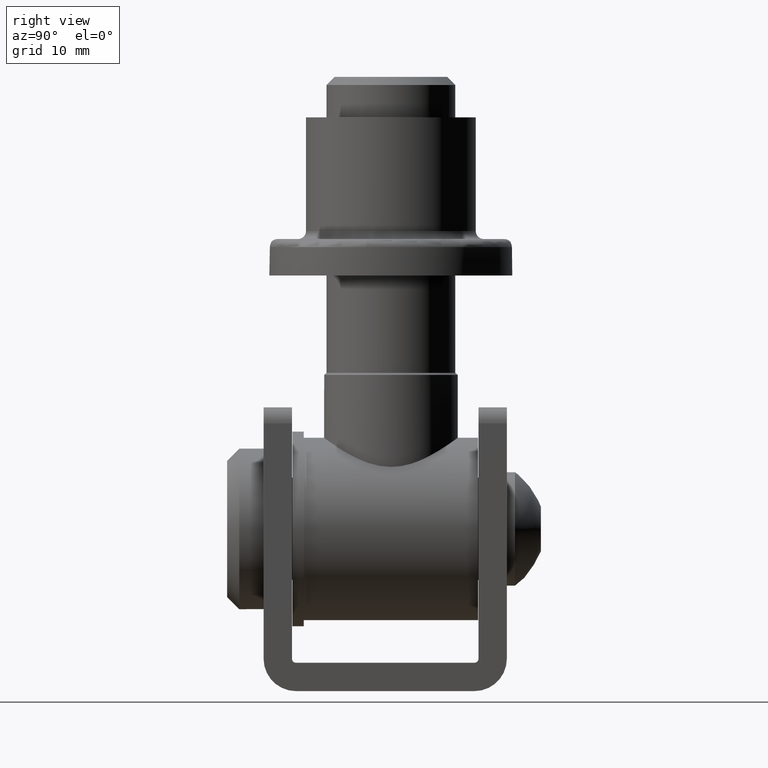
[diagram: clean part render]
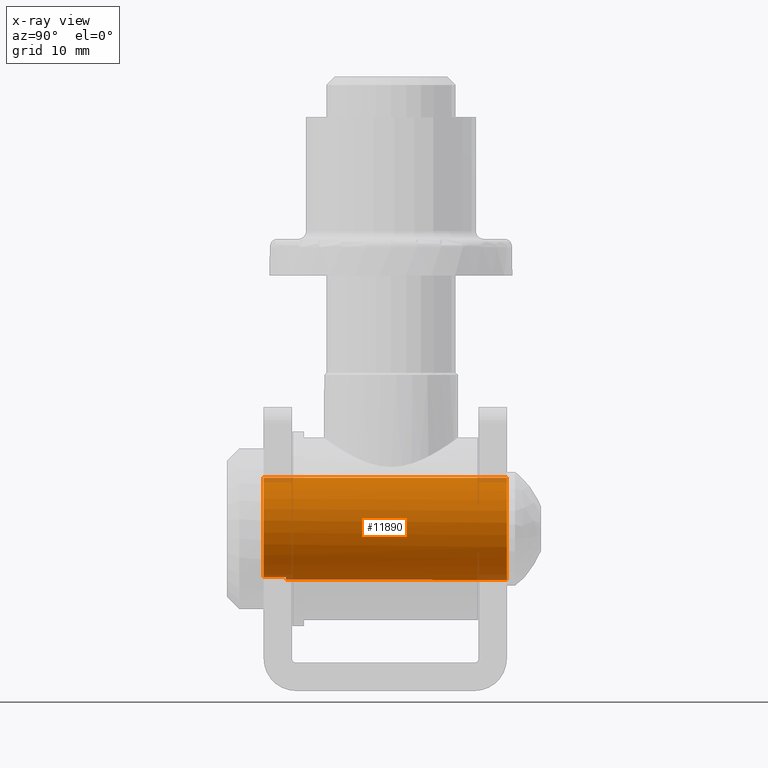
[diagram: x-ray — body ghosted, one internal face saturated and labeled with its STEP entity id]
A machine part, right view, then the same camera in x-ray: the body is ghosted and one INTERNAL B-rep face — a face not visible from any outside direction — is saturated and labeled: STEP entity #11890.
In plain terms, the highlighted cylindrical surface (bore or boss wall) has radius 6.3 mm, axis along (0, -1, 0).
Its self-contained STEP definition (entity closure, byte-faithful):
#12 = CARTESIAN_POINT ( 'NONE',  ( 1.999999999999998668, 3.000000000000000000, 5.974110812497539058 ) ) ;
#54 = DIRECTION ( 'NONE',  ( 0.000000000000000000, 0.000000000000000000, -1.000000000000000000 ) ) ;
#299 = VECTOR ( 'NONE', #3272, 1000.000000000000000 ) ;
#388 = EDGE_CURVE ( 'NONE', #2749, #2749, #12528, .T. ) ;
#1051 = ORIENTED_EDGE ( 'NONE', *, *, #7073, .F. ) ;
#1106 = CIRCLE ( 'NONE', #13407, 6.299999999999998046 ) ;
#1487 = CIRCLE ( 'NONE', #4587, 6.299999999999999822 ) ;
#1902 = ORIENTED_EDGE ( 'NONE', *, *, #9110, .T. ) ;
#2131 = CARTESIAN_POINT ( 'NONE',  ( 0.000000000000000000, 0.000000000000000000, 0.000000000000000000 ) ) ;
#2468 = DIRECTION ( 'NONE',  ( -0.000000000000000000, -1.000000000000000000, -0.000000000000000000 ) ) ;
#2478 = AXIS2_PLACEMENT_3D ( 'NONE', #11223, #2468, #6849 ) ;
#2507 = DIRECTION ( 'NONE',  ( 1.776356839400250465E-15, 0.000000000000000000, -1.000000000000000000 ) ) ;
#2648 = CARTESIAN_POINT ( 'NONE',  ( 0.000000000000000000, 2.750000000000001776, 0.000000000000000000 ) ) ;
#2749 = VERTEX_POINT ( 'NONE', #5553 ) ;
#3272 = DIRECTION ( 'NONE',  ( -0.000000000000000000, -1.000000000000000000, -0.000000000000000000 ) ) ;
#3292 = ORIENTED_EDGE ( 'NONE', *, *, #11636, .T. ) ;
#3661 = CARTESIAN_POINT ( 'NONE',  ( -2.000000000000014211, 2.750000000000000444, 5.974110812497533729 ) ) ;
#3741 = ORIENTED_EDGE ( 'NONE', *, *, #388, .T. ) ;
#4153 = VERTEX_POINT ( 'NONE', #8759 ) ;
#4435 = VERTEX_POINT ( 'NONE', #11103 ) ;
#4587 = AXIS2_PLACEMENT_3D ( 'NONE', #9530, #8514, #12797 ) ;
#4774 = DIRECTION ( 'NONE',  ( -0.000000000000000000, -1.000000000000000000, -0.000000000000000000 ) ) ;
#5368 = FACE_OUTER_BOUND ( 'NONE', #7799, .T. ) ;
#5553 = CARTESIAN_POINT ( 'NONE',  ( 0.000000000000000000, 30.00000000000000000, -6.299999999999996270 ) ) ;
#6092 = LINE ( 'NONE', #6811, #13576 ) ;
#6556 = DIRECTION ( 'NONE',  ( -0.000000000000000000, -1.000000000000000000, -0.000000000000000000 ) ) ;
#6811 = CARTESIAN_POINT ( 'NONE',  ( -2.000000000000014211, 3.000000000000000000, 5.974110812497533729 ) ) ;
#6849 = DIRECTION ( 'NONE',  ( 0.000000000000000000, 0.000000000000000000, -1.000000000000000000 ) ) ;
#7073 = EDGE_CURVE ( 'NONE', #11704, #4435, #6092, .T. ) ;
#7480 = ORIENTED_EDGE ( 'NONE', *, *, #8448, .F. ) ;
#7799 = EDGE_LOOP ( 'NONE', ( #1051, #3292, #1902, #7480 ) ) ;
#8448 = EDGE_CURVE ( 'NONE', #4435, #4153, #1487, .T. ) ;
#8514 = DIRECTION ( 'NONE',  ( -0.000000000000000000, -1.000000000000000000, -0.000000000000000000 ) ) ;
#8556 = CYLINDRICAL_SURFACE ( 'NONE', #12146, 6.299999999999998046 ) ;
#8759 = CARTESIAN_POINT ( 'NONE',  ( 1.999999999999998668, 0.000000000000000000, 5.974110812497539058 ) ) ;
#8804 = CARTESIAN_POINT ( 'NONE',  ( 1.999999999999998668, 2.750000000000000444, 5.974110812497539058 ) ) ;
#9070 = DIRECTION ( 'NONE',  ( -0.000000000000000000, 1.000000000000000000, -0.000000000000000000 ) ) ;
#9110 = EDGE_CURVE ( 'NONE', #11183, #4153, #11859, .T. ) ;
#9530 = CARTESIAN_POINT ( 'NONE',  ( 0.000000000000000000, 0.000000000000000000, 0.000000000000000000 ) ) ;
#11103 = CARTESIAN_POINT ( 'NONE',  ( -2.000000000000014211, 0.000000000000000000, 5.974110812497534617 ) ) ;
#11183 = VERTEX_POINT ( 'NONE', #8804 ) ;
#11223 = CARTESIAN_POINT ( 'NONE',  ( 0.000000000000000000, 30.00000000000000000, 0.000000000000000000 ) ) ;
#11282 = FACE_OUTER_BOUND ( 'NONE', #13117, .T. ) ;
#11636 = EDGE_CURVE ( 'NONE', #11704, #11183, #1106, .T. ) ;
#11704 = VERTEX_POINT ( 'NONE', #3661 ) ;
#11859 = LINE ( 'NONE', #12, #299 ) ;
#11890 = ADVANCED_FACE ( 'NONE', ( #11282, #5368 ), #8556, .T. ) ;
#12146 = AXIS2_PLACEMENT_3D ( 'NONE', #2131, #6556, #54 ) ;
#12528 = CIRCLE ( 'NONE', #2478, 6.299999999999996270 ) ;
#12797 = DIRECTION ( 'NONE',  ( 0.000000000000000000, 0.000000000000000000, -1.000000000000000000 ) ) ;
#13117 = EDGE_LOOP ( 'NONE', ( #3741 ) ) ;
#13407 = AXIS2_PLACEMENT_3D ( 'NONE', #2648, #9070, #2507 ) ;
#13576 = VECTOR ( 'NONE', #4774, 1000.000000000000000 ) ;